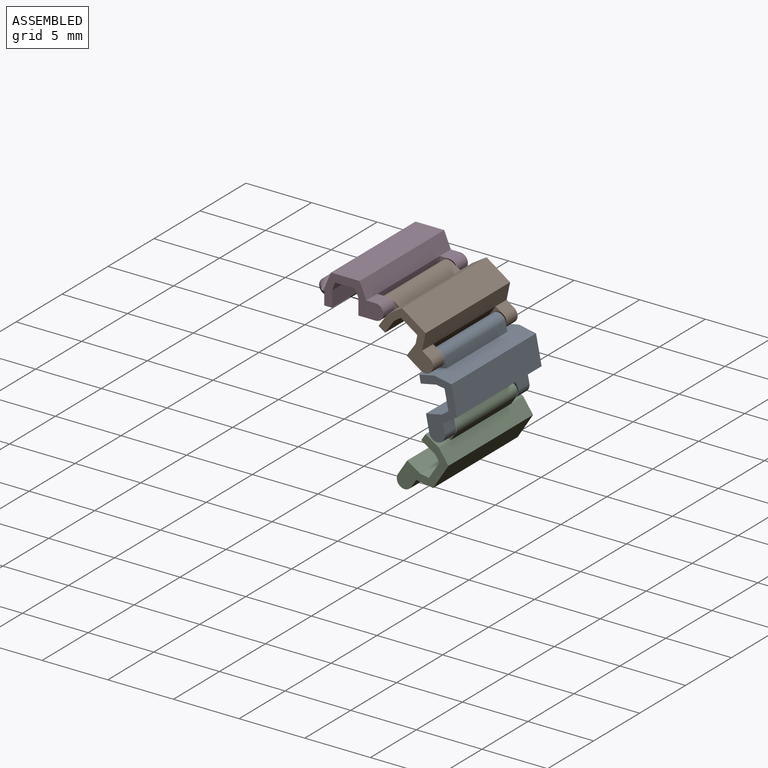
[diagram: assembled view]
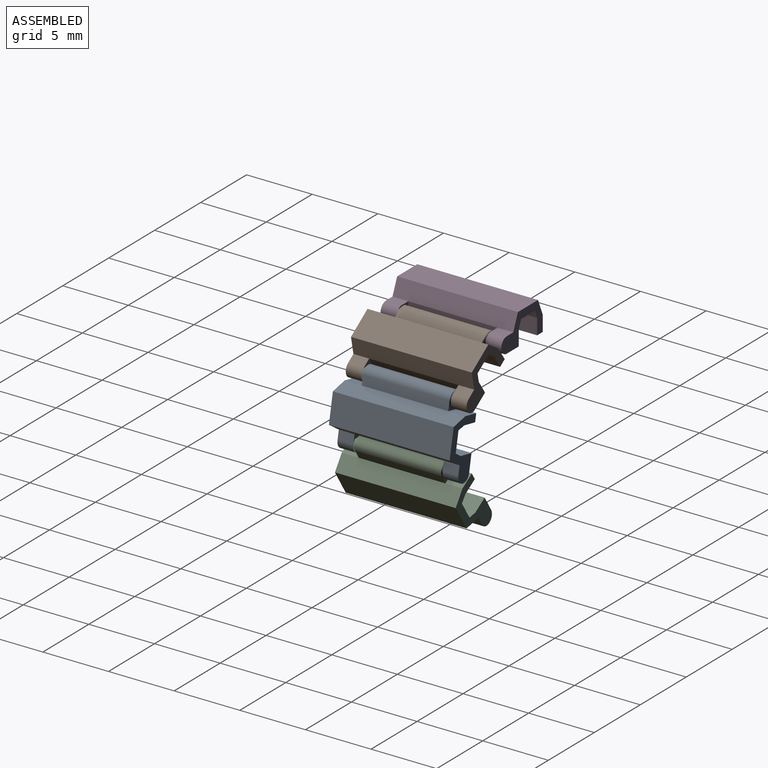
[diagram: assembled view, second angle]
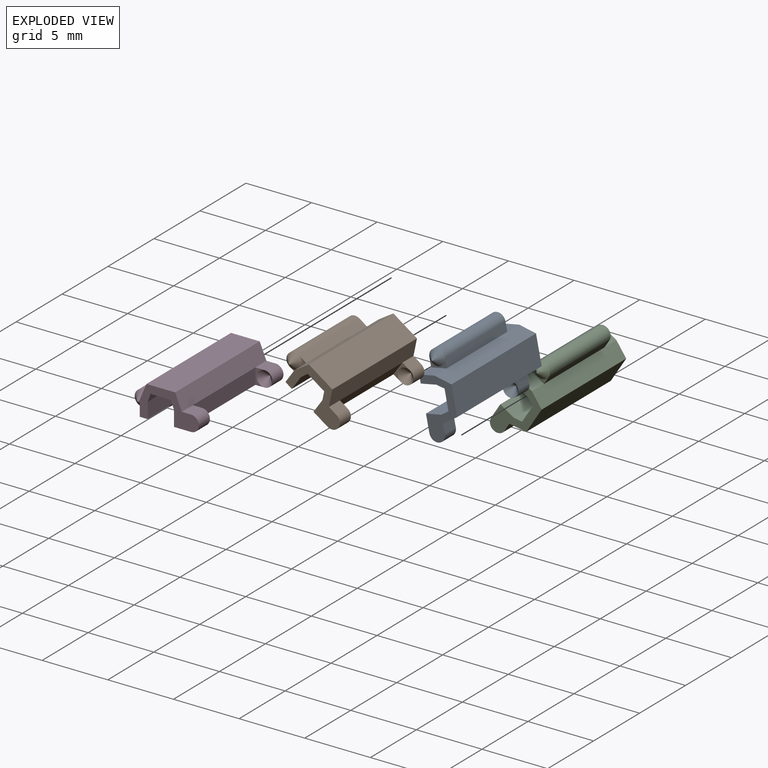
[diagram: exploded view]
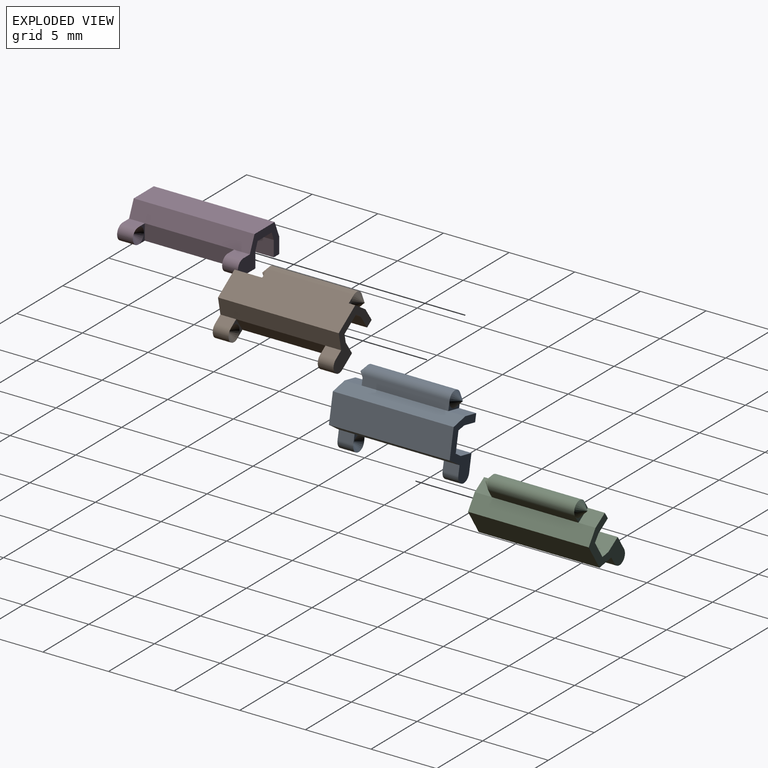
[diagram: exploded view, second angle]
ASSEMBLY  parts=4 mates=3
PART A: 29 faces, bbox 5.8x9.2x2.4 mm
  f0: plane 1.2x0.7mm, normal (0,1,0), area 0.3mm2, adj f1,f9,f26,f27
  f1: plane 6.8x1.2mm, normal (1,0,0), area 8.2mm2, adj f0,f2,f9,f10
  f2: plane 1.2x0.7mm, normal (0,-1,0), area 0.3mm2, adj f1,f9,f21,f22
  f3: plane 1.3x1.2mm, normal (-1,0,0), area 1.6mm2, adj f12,f14,f16,f18
  f4: plane 9.2x1.2mm, normal (1,0,0), area 11mm2, adj f5,f14,f15,f16
  f5: plane 9.2x0.6mm, normal (0.94,0,-0.34), area 5.9mm2, adj f4,f6,f15,f16
  f6: plane 9.2x1.53mm, normal (0,0,-1), area 14mm2, adj f5,f7,f15,f16
  f7: plane 9.2x0.6mm, normal (-0.92,0,-0.39), area 6mm2, adj f6,f8,f15,f16
  f8: plane 9.2x1.2mm, normal (-1,0,0), area 11mm2, adj f7,f9,f15,f16
  f9: plane 9.2x1.3mm, normal (0,0,-1), area 7.2mm2, adj f0,f1,f2,f8,f15,f16,f23,f28
  f10: plane 9.2x1.2mm, normal (0.92,0,0.39), area 12mm2, adj f1,f11,f15,f16,f21,f26
  f11: plane 9.2x2.19mm, normal (0,0,1), area 20.1mm2, adj f10,f12,f15,f16
  f12: plane 9.2x1.2mm, normal (-0.92,0,0.39), area 12mm2, adj f3,f11,f13,f15,f16,f17
  f13: plane 1.3x1.2mm, normal (-1,0,0), area 1.6mm2, adj f12,f14,f15,f24
  f14: plane 9.2x1.3mm, normal (0,0,-1), area 10.1mm2, adj f3,f4,f13,f15,f16,f18,f19,f24
  f15: plane 4.5x2.4mm, normal (0,-1,0), area 5mm2, adj f4,f5,f6,f7,f8,f9,f10,f11
  f16: plane 4.5x2.4mm, normal (0,1,0), area 5mm2, adj f3,f4,f5,f6,f7,f8,f9,f10
  f17: plane 6.6x0.7mm, normal (0,0,1), area 4.6mm2, adj f12,f18,f19,f24
  f18: plane 1.2x0.7mm, normal (0,1,0), area 0.3mm2, adj f3,f14,f17,f20
  f19: cylinder r=0.6mm len=6.6mm, axis (0,-1,0), area 12.4mm2, adj f14,f17,f20,f25
  f20: cone r=0.6mm half-angle=45deg, axis (0,-1,0), area 1.6mm2, adj f18,f19
  f21: plane 1.2x0.7mm, normal (0,0,1), area 0.8mm2, adj f2,f10,f16,f23
  f22: cone r=0.6mm half-angle=45deg, axis (0,-1,0), area 1.6mm2, adj f2,f23
  f23: cylinder r=0.6mm len=1.2mm, axis (0,-1,0), area 2.3mm2, adj f9,f16,f21,f22
  f24: plane 1.2x0.7mm, normal (0,-1,0), area 0.3mm2, adj f13,f14,f17,f25
  f25: cone r=0.6mm half-angle=45deg, axis (0,1,0), area 1.6mm2, adj f19,f24
  f26: plane 1.2x0.7mm, normal (0,0,1), area 0.8mm2, adj f0,f10,f15,f28
  f27: cone r=0.6mm half-angle=45deg, axis (0,1,0), area 1.6mm2, adj f0,f28
  f28: cylinder r=0.6mm len=1.2mm, axis (0,1,0), area 2.3mm2, adj f9,f15,f26,f27
PART B: same geometry as A
PART C: same geometry as A
PART D: same geometry as A
PLACE A rot(axis=(0,1,0),78.6deg) t=(6.41,7.76,-8.23)mm
PLACE B rot(axis=(0,1,0),34.7deg) t=(4.06,7.76,-4.67)mm
PLACE C rot(axis=(0,1,0),122.5deg) t=(5.63,7.76,-12.43)mm
PLACE D t=(-0.13,7.76,-3.36)mm fixed
MATE revolute D.f22 <-> B.f25  axis (0,-1,0) through (2.17,11.16,-3.36)mm
MATE revolute A.f22 <-> C.f25  axis (0,-1,0) through (6.86,11.16,-10.49)mm
MATE revolute B.f22 <-> A.f25  axis (0,-1,0) through (5.95,11.16,-5.98)mm
